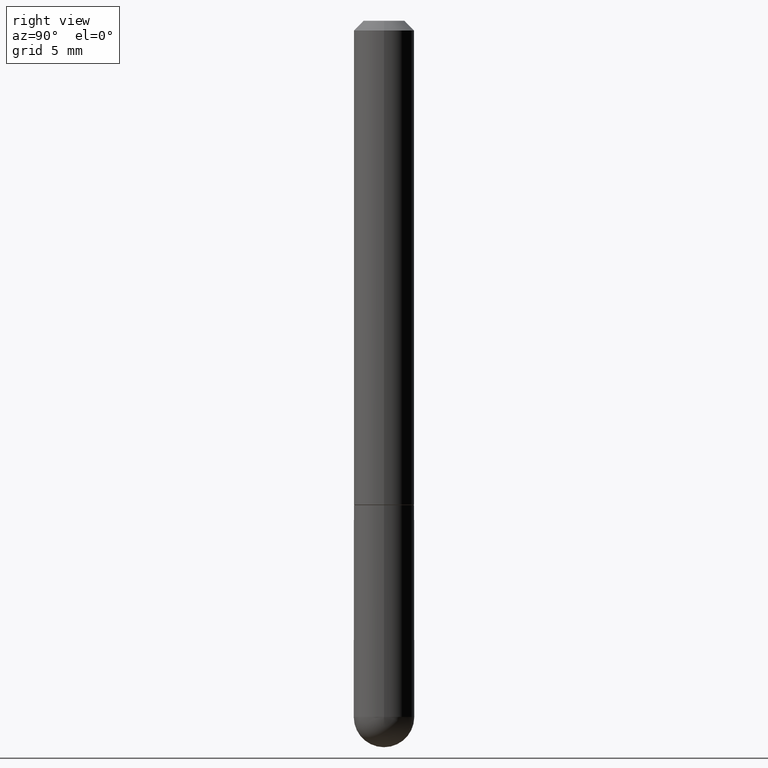
[diagram: clean part render]
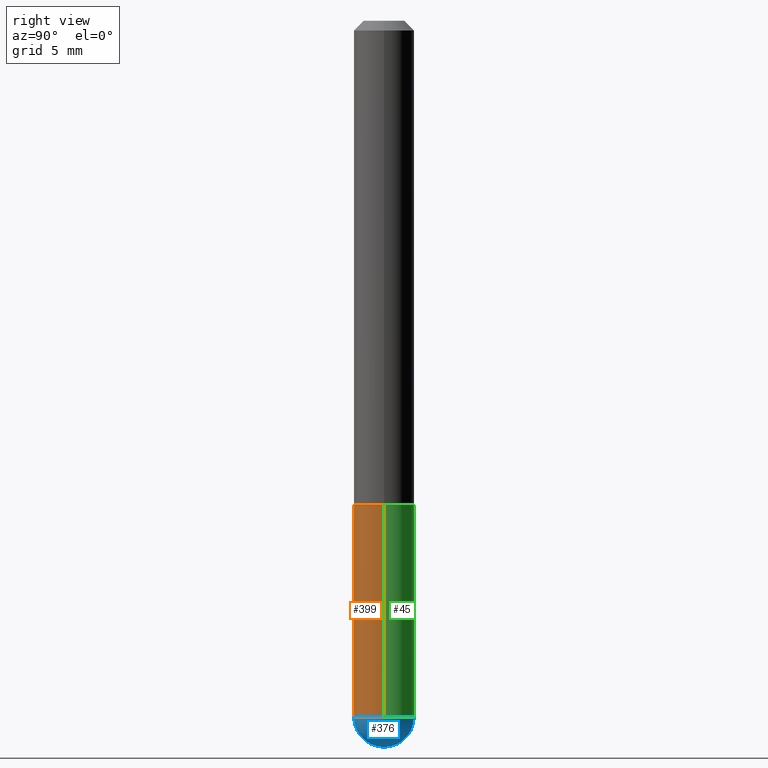
[diagram: same view with three faces highlighted in distinct colors, each labeled with its STEP entity id]
A machine part, right view with three faces highlighted in distinct colors.
Their STEP definitions:

[orange] entity #399 — the highlighted cylindrical surface (edge-blend (fillet) strip) has radius 1.5875 mm, axis along (-0, 0, 1).
#4 = AXIS2_PLACEMENT_3D ( 'NONE', #50, #75, #80 ) ;
#10 = ORIENTED_EDGE ( 'NONE', *, *, #297, .F. ) ;
#15 = EDGE_CURVE ( 'NONE', #131, #214, #356, .T. ) ;
#23 = EDGE_CURVE ( 'NONE', #176, #196, #49, .T. ) ;
#32 = DIRECTION ( 'NONE',  ( 1.000000000000000000, -6.982962677686268288E-15, 0.000000000000000000 ) ) ;
#40 = DIRECTION ( 'NONE',  ( -2.445468806185136877E-29, 3.491481338843145188E-15, 1.000000000000000000 ) ) ;
#41 = EDGE_CURVE ( 'NONE', #196, #131, #274, .T. ) ;
#49 = CIRCLE ( 'NONE', #243, 0.06249999999999995143 ) ;
#50 = CARTESIAN_POINT ( 'NONE',  ( 2.445468806185136877E-29, -3.491481338843145977E-15, -1.000000000000000222 ) ) ;
#60 = CARTESIAN_POINT ( 'NONE',  ( 3.515361408891134418E-29, -5.019004424587023131E-15, -1.437500000000000222 ) ) ;
#70 = VECTOR ( 'NONE', #355, 39.37007874015748143 ) ;
#75 = DIRECTION ( 'NONE',  ( -2.445468806185136597E-29, 3.491481338843145583E-15, 1.000000000000000000 ) ) ;
#80 = DIRECTION ( 'NONE',  ( 1.000000000000000000, -6.982962677686262766E-15, 0.000000000000000000 ) ) ;
#86 = ORIENTED_EDGE ( 'NONE', *, *, #363, .F. ) ;
#92 = VERTEX_POINT ( 'NONE', #249 ) ;
#113 = CYLINDRICAL_SURFACE ( 'NONE', #241, 0.06249999999999997224 ) ;
#115 = CIRCLE ( 'NONE', #4, 0.06250000000000000000 ) ;
#119 = DIRECTION ( 'NONE',  ( -2.445468806185136597E-29, 3.491481338843145583E-15, 1.000000000000000000 ) ) ;
#131 = VERTEX_POINT ( 'NONE', #284 ) ;
#137 = ORIENTED_EDGE ( 'NONE', *, *, #15, .T. ) ;
#140 = EDGE_LOOP ( 'NONE', ( #10, #227, #194, #137, #86 ) ) ;
#170 = CARTESIAN_POINT ( 'NONE',  ( 3.515361408891134418E-29, -5.019004424587023131E-15, -1.437500000000000222 ) ) ;
#176 = VERTEX_POINT ( 'NONE', #289 ) ;
#178 = LINE ( 'NONE', #197, #70 ) ;
#194 = ORIENTED_EDGE ( 'NONE', *, *, #41, .T. ) ;
#196 = VERTEX_POINT ( 'NONE', #321 ) ;
#197 = CARTESIAN_POINT ( 'NONE',  ( -0.06249999999999997224, 4.440892098500624190E-16, -3.074334431409315063E-30 ) ) ;
#214 = VERTEX_POINT ( 'NONE', #327 ) ;
#227 = ORIENTED_EDGE ( 'NONE', *, *, #23, .T. ) ;
#238 = CARTESIAN_POINT ( 'NONE',  ( 0.000000000000000000, 0.000000000000000000, 0.000000000000000000 ) ) ;
#241 = AXIS2_PLACEMENT_3D ( 'NONE', #238, #119, #393 ) ;
#243 = AXIS2_PLACEMENT_3D ( 'NONE', #60, #317, #32 ) ;
#249 = CARTESIAN_POINT ( 'NONE',  ( -0.06250000000000000000, -3.811153671865022332E-15, -1.000000000000000222 ) ) ;
#274 = CIRCLE ( 'NONE', #281, 0.06249999999999995143 ) ;
#281 = AXIS2_PLACEMENT_3D ( 'NONE', #170, #286, #408 ) ;
#284 = CARTESIAN_POINT ( 'NONE',  ( 0.06249999999999995143, -4.691678049070475040E-15, -1.437500000000000222 ) ) ;
#286 = DIRECTION ( 'NONE',  ( -2.445468806185136597E-29, 3.491481338843145583E-15, 1.000000000000000000 ) ) ;
#289 = CARTESIAN_POINT ( 'NONE',  ( -0.06249999999999995143, -3.811153671865022332E-15, -1.437500000000000222 ) ) ;
#297 = EDGE_CURVE ( 'NONE', #176, #92, #178, .T. ) ;
#301 = VECTOR ( 'NONE', #40, 39.37007874015748143 ) ;
#302 = FACE_OUTER_BOUND ( 'NONE', #140, .T. ) ;
#317 = DIRECTION ( 'NONE',  ( -2.445468806185136597E-29, 3.491481338843145583E-15, 1.000000000000000000 ) ) ;
#321 = CARTESIAN_POINT ( 'NONE',  ( -4.440892098500294840E-16, -0.06250000000000532907, -1.437500000000000000 ) ) ;
#325 = CARTESIAN_POINT ( 'NONE',  ( 0.06249999999999997224, -4.364351673553914722E-16, 3.047610484872458469E-30 ) ) ;
#327 = CARTESIAN_POINT ( 'NONE',  ( 0.06250000000000000000, -3.927916506198537646E-15, -1.000000000000000222 ) ) ;
#355 = DIRECTION ( 'NONE',  ( -2.445468806185136877E-29, 3.491481338843145188E-15, 1.000000000000000000 ) ) ;
#356 = LINE ( 'NONE', #325, #301 ) ;
#363 = EDGE_CURVE ( 'NONE', #92, #214, #115, .T. ) ;
#393 = DIRECTION ( 'NONE',  ( 1.000000000000000000, -6.982962677686266711E-15, 4.876176775795935793E-29 ) ) ;
#399 = ADVANCED_FACE ( 'NONE', ( #302 ), #113, .T. ) ;
#408 = DIRECTION ( 'NONE',  ( 1.000000000000000000, -6.982962677686268288E-15, 0.000000000000000000 ) ) ;

[blue] entity #376 — the highlighted spherical surface has radius 1.5875 mm.
#1 = ORIENTED_EDGE ( 'NONE', *, *, #375, .F. ) ;
#21 = FACE_OUTER_BOUND ( 'NONE', #73, .T. ) ;
#41 = EDGE_CURVE ( 'NONE', #196, #131, #274, .T. ) ;
#42 = DIRECTION ( 'NONE',  ( -1.000000000000000000, 7.105427357601001070E-15, -4.926315508542082329E-29 ) ) ;
#53 = DIRECTION ( 'NONE',  ( -1.000000000000000000, 6.982962677686265922E-15, -4.883557194083112340E-29 ) ) ;
#65 = VERTEX_POINT ( 'NONE', #158 ) ;
#73 = EDGE_LOOP ( 'NONE', ( #318, #198, #1, #209 ) ) ;
#74 = CARTESIAN_POINT ( 'NONE',  ( 3.184241630977247611E-29, -5.493186792727071849E-15, -1.437500000000000000 ) ) ;
#107 = AXIS2_PLACEMENT_3D ( 'NONE', #153, #206, #232 ) ;
#131 = VERTEX_POINT ( 'NONE', #284 ) ;
#135 = AXIS2_PLACEMENT_3D ( 'NONE', #400, #53, #184 ) ;
#152 = DIRECTION ( 'NONE',  ( 1.000000000000000000, -6.982962677686268288E-15, 0.000000000000000000 ) ) ;
#153 = CARTESIAN_POINT ( 'NONE',  ( 3.184241630977247611E-29, -5.493186792727071849E-15, -1.437500000000000000 ) ) ;
#158 = CARTESIAN_POINT ( 'NONE',  ( 4.364351673554256397E-16, 0.06249999999999480971, -1.437500000000000444 ) ) ;
#170 = CARTESIAN_POINT ( 'NONE',  ( 3.515361408891134418E-29, -5.019004424587023131E-15, -1.437500000000000222 ) ) ;
#174 = DIRECTION ( 'NONE',  ( -7.105427357601001859E-15, -1.000000000000000000, 0.000000000000000000 ) ) ;
#181 = SPHERICAL_SURFACE ( 'NONE', #135, 0.06250000000000018041 ) ;
#184 = DIRECTION ( 'NONE',  ( 6.982962677686265922E-15, 1.000000000000000000, -4.370956789862807739E-15 ) ) ;
#196 = VERTEX_POINT ( 'NONE', #321 ) ;
#198 = ORIENTED_EDGE ( 'NONE', *, *, #367, .T. ) ;
#206 = DIRECTION ( 'NONE',  ( 1.000000000000000000, -6.982962677686265922E-15, 4.883557194083112340E-29 ) ) ;
#209 = ORIENTED_EDGE ( 'NONE', *, *, #41, .F. ) ;
#232 = DIRECTION ( 'NONE',  ( 6.982962677686266711E-15, 1.000000000000000000, 0.000000000000000000 ) ) ;
#237 = EDGE_CURVE ( 'NONE', #354, #196, #380, .T. ) ;
#271 = AXIS2_PLACEMENT_3D ( 'NONE', #366, #336, #152 ) ;
#274 = CIRCLE ( 'NONE', #281, 0.06249999999999995143 ) ;
#281 = AXIS2_PLACEMENT_3D ( 'NONE', #170, #286, #408 ) ;
#284 = CARTESIAN_POINT ( 'NONE',  ( 0.06249999999999995143, -4.691678049070475040E-15, -1.437500000000000222 ) ) ;
#286 = DIRECTION ( 'NONE',  ( -2.445468806185136597E-29, 3.491481338843145583E-15, 1.000000000000000000 ) ) ;
#318 = ORIENTED_EDGE ( 'NONE', *, *, #237, .F. ) ;
#321 = CARTESIAN_POINT ( 'NONE',  ( -4.440892098500294840E-16, -0.06250000000000532907, -1.437500000000000000 ) ) ;
#324 = CARTESIAN_POINT ( 'NONE',  ( 3.339755826017505008E-29, -5.707577355157432999E-15, -1.500000000000000222 ) ) ;
#331 = AXIS2_PLACEMENT_3D ( 'NONE', #74, #42, #174 ) ;
#336 = DIRECTION ( 'NONE',  ( -2.445468806185136597E-29, 3.491481338843145583E-15, 1.000000000000000000 ) ) ;
#337 = CIRCLE ( 'NONE', #271, 0.06249999999999995143 ) ;
#354 = VERTEX_POINT ( 'NONE', #324 ) ;
#366 = CARTESIAN_POINT ( 'NONE',  ( 3.515361408891134418E-29, -5.019004424587023131E-15, -1.437500000000000222 ) ) ;
#367 = EDGE_CURVE ( 'NONE', #354, #65, #392, .T. ) ;
#375 = EDGE_CURVE ( 'NONE', #131, #65, #337, .T. ) ;
#376 = ADVANCED_FACE ( 'NONE', ( #21 ), #181, .T. ) ;
#380 = CIRCLE ( 'NONE', #331, 0.06250000000000018041 ) ;
#392 = CIRCLE ( 'NONE', #107, 0.06250000000000018041 ) ;
#400 = CARTESIAN_POINT ( 'NONE',  ( 3.184241630977247611E-29, -5.493186792727071849E-15, -1.437500000000000000 ) ) ;
#408 = DIRECTION ( 'NONE',  ( 1.000000000000000000, -6.982962677686268288E-15, 0.000000000000000000 ) ) ;

[green] entity #45 — the highlighted cylindrical surface (edge-blend (fillet) strip) has radius 1.5875 mm, axis along (-0, 0, 1).
#13 = CARTESIAN_POINT ( 'NONE',  ( 3.515361408891134418E-29, -5.019004424587023131E-15, -1.437500000000000222 ) ) ;
#15 = EDGE_CURVE ( 'NONE', #131, #214, #356, .T. ) ;
#40 = DIRECTION ( 'NONE',  ( -2.445468806185136877E-29, 3.491481338843145188E-15, 1.000000000000000000 ) ) ;
#45 = ADVANCED_FACE ( 'NONE', ( #379 ), #280, .T. ) ;
#54 = ORIENTED_EDGE ( 'NONE', *, *, #308, .T. ) ;
#61 = CIRCLE ( 'NONE', #300, 0.06250000000000000000 ) ;
#65 = VERTEX_POINT ( 'NONE', #158 ) ;
#68 = DIRECTION ( 'NONE',  ( -2.445468806185136597E-29, 3.491481338843145583E-15, 1.000000000000000000 ) ) ;
#70 = VECTOR ( 'NONE', #355, 39.37007874015748143 ) ;
#76 = AXIS2_PLACEMENT_3D ( 'NONE', #13, #68, #200 ) ;
#92 = VERTEX_POINT ( 'NONE', #249 ) ;
#127 = ORIENTED_EDGE ( 'NONE', *, *, #297, .T. ) ;
#128 = DIRECTION ( 'NONE',  ( 1.000000000000000000, -6.982962677686266711E-15, 4.876176775795935793E-29 ) ) ;
#131 = VERTEX_POINT ( 'NONE', #284 ) ;
#134 = ORIENTED_EDGE ( 'NONE', *, *, #375, .T. ) ;
#152 = DIRECTION ( 'NONE',  ( 1.000000000000000000, -6.982962677686268288E-15, 0.000000000000000000 ) ) ;
#158 = CARTESIAN_POINT ( 'NONE',  ( 4.364351673554256397E-16, 0.06249999999999480971, -1.437500000000000444 ) ) ;
#164 = AXIS2_PLACEMENT_3D ( 'NONE', #253, #169, #128 ) ;
#169 = DIRECTION ( 'NONE',  ( -2.445468806185136597E-29, 3.491481338843145583E-15, 1.000000000000000000 ) ) ;
#176 = VERTEX_POINT ( 'NONE', #289 ) ;
#178 = LINE ( 'NONE', #197, #70 ) ;
#193 = CIRCLE ( 'NONE', #76, 0.06249999999999995143 ) ;
#197 = CARTESIAN_POINT ( 'NONE',  ( -0.06249999999999997224, 4.440892098500624190E-16, -3.074334431409315063E-30 ) ) ;
#200 = DIRECTION ( 'NONE',  ( 1.000000000000000000, -6.982962677686268288E-15, 0.000000000000000000 ) ) ;
#213 = CARTESIAN_POINT ( 'NONE',  ( 2.445468806185136877E-29, -3.491481338843145977E-15, -1.000000000000000222 ) ) ;
#214 = VERTEX_POINT ( 'NONE', #327 ) ;
#249 = CARTESIAN_POINT ( 'NONE',  ( -0.06250000000000000000, -3.811153671865022332E-15, -1.000000000000000222 ) ) ;
#253 = CARTESIAN_POINT ( 'NONE',  ( 0.000000000000000000, 0.000000000000000000, 0.000000000000000000 ) ) ;
#266 = DIRECTION ( 'NONE',  ( 1.000000000000000000, -6.982962677686262766E-15, 0.000000000000000000 ) ) ;
#271 = AXIS2_PLACEMENT_3D ( 'NONE', #366, #336, #152 ) ;
#280 = CYLINDRICAL_SURFACE ( 'NONE', #164, 0.06249999999999997224 ) ;
#284 = CARTESIAN_POINT ( 'NONE',  ( 0.06249999999999995143, -4.691678049070475040E-15, -1.437500000000000222 ) ) ;
#289 = CARTESIAN_POINT ( 'NONE',  ( -0.06249999999999995143, -3.811153671865022332E-15, -1.437500000000000222 ) ) ;
#296 = ORIENTED_EDGE ( 'NONE', *, *, #404, .F. ) ;
#297 = EDGE_CURVE ( 'NONE', #176, #92, #178, .T. ) ;
#300 = AXIS2_PLACEMENT_3D ( 'NONE', #213, #368, #266 ) ;
#301 = VECTOR ( 'NONE', #40, 39.37007874015748143 ) ;
#308 = EDGE_CURVE ( 'NONE', #65, #176, #193, .T. ) ;
#325 = CARTESIAN_POINT ( 'NONE',  ( 0.06249999999999997224, -4.364351673553914722E-16, 3.047610484872458469E-30 ) ) ;
#326 = ORIENTED_EDGE ( 'NONE', *, *, #15, .F. ) ;
#327 = CARTESIAN_POINT ( 'NONE',  ( 0.06250000000000000000, -3.927916506198537646E-15, -1.000000000000000222 ) ) ;
#336 = DIRECTION ( 'NONE',  ( -2.445468806185136597E-29, 3.491481338843145583E-15, 1.000000000000000000 ) ) ;
#337 = CIRCLE ( 'NONE', #271, 0.06249999999999995143 ) ;
#355 = DIRECTION ( 'NONE',  ( -2.445468806185136877E-29, 3.491481338843145188E-15, 1.000000000000000000 ) ) ;
#356 = LINE ( 'NONE', #325, #301 ) ;
#366 = CARTESIAN_POINT ( 'NONE',  ( 3.515361408891134418E-29, -5.019004424587023131E-15, -1.437500000000000222 ) ) ;
#368 = DIRECTION ( 'NONE',  ( -2.445468806185136597E-29, 3.491481338843145583E-15, 1.000000000000000000 ) ) ;
#375 = EDGE_CURVE ( 'NONE', #131, #65, #337, .T. ) ;
#379 = FACE_OUTER_BOUND ( 'NONE', #384, .T. ) ;
#384 = EDGE_LOOP ( 'NONE', ( #54, #127, #296, #326, #134 ) ) ;
#404 = EDGE_CURVE ( 'NONE', #214, #92, #61, .T. ) ;